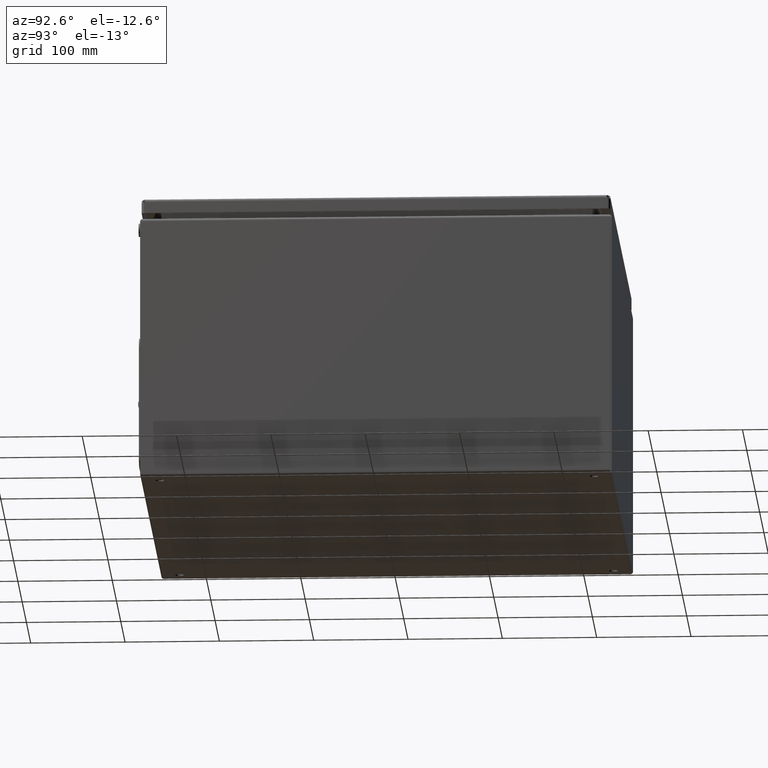
[diagram: clean part render]
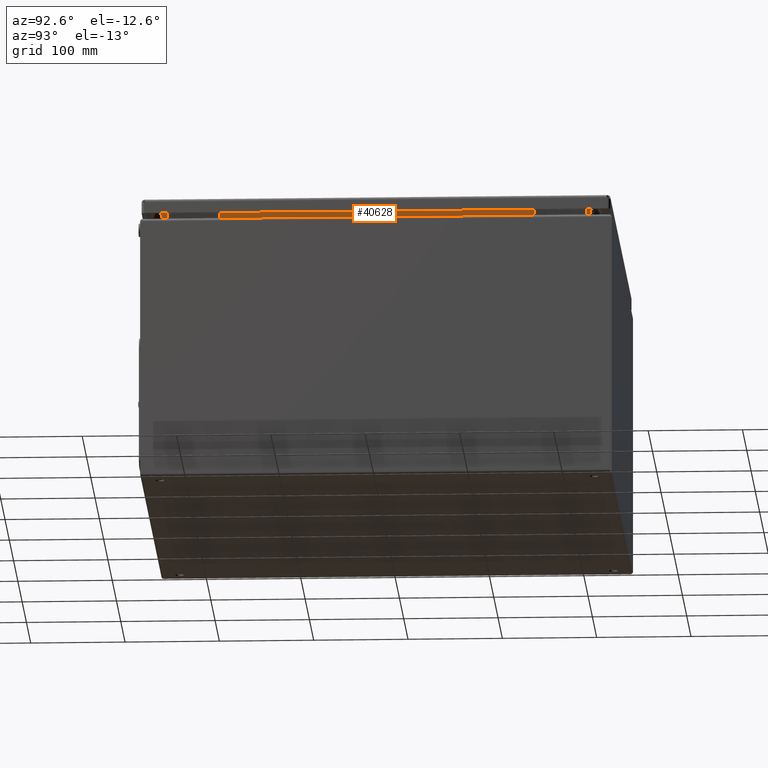
[diagram: same view with one face highlighted and labeled with its STEP entity id]
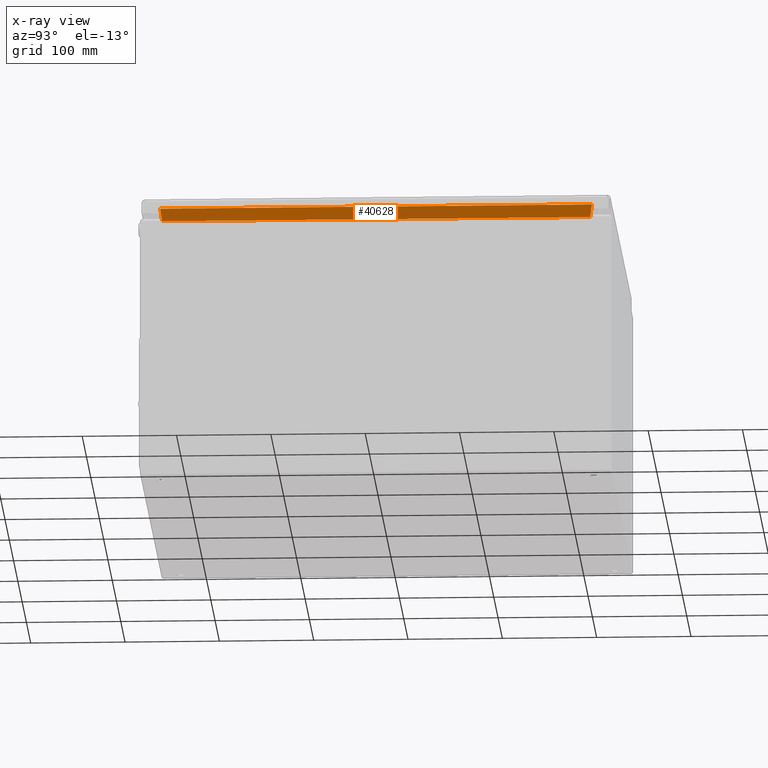
[diagram: x-ray of the same camera — body ghosted, the highlighted face saturated]
A machine part, auxiliary view. The second image highlights one B-rep face of the part: STEP entity #40628.
The next image is the same camera in x-ray: the body ghosted, the highlighted face saturated — about 0% of this face is hidden behind the body in this view.
In plain terms, the highlighted planar face has unit normal (-0.9903, 0, 0.1392).
Its self-contained STEP definition (entity closure, byte-faithful):
#22263 = DIRECTION ( 'NONE',  ( 0.0000000000000000000, 1.000000000000000000, 0.0000000000000000000 ) ) ;
#22264 = VECTOR ( 'NONE', #22263, 1000.000000000000000 ) ;
#22265 = CARTESIAN_POINT ( 'NONE',  ( 227.5157031185518400, -248.4992928931970100, 281.7087596514596700 ) ) ;
#22270 = CARTESIAN_POINT ( 'NONE',  ( 227.5157031185502500, 226.2096941927741500, 281.7087596514600100 ) ) ;
#22272 = LINE ( 'NONE', #22265, #22264 ) ;
#22284 = CARTESIAN_POINT ( 'NONE',  ( 227.5157031185518400, -227.7096941927494500, 281.7087596514596700 ) ) ;
#23637 = LINE ( 'NONE', #23679, #23678 ) ;
#23677 = DIRECTION ( 'NONE',  ( 0.0000000000000000000, 1.000000000000000000, 0.0000000000000000000 ) ) ;
#23678 = VECTOR ( 'NONE', #23677, 1000.000000000000000 ) ;
#23679 = CARTESIAN_POINT ( 'NONE',  ( 229.3810286342966000, -248.4992928931970100, 294.9812403485795500 ) ) ;
#23693 = CARTESIAN_POINT ( 'NONE',  ( 229.3810286342979900, -229.5933513302707400, 294.9812403485792100 ) ) ;
#23709 = DIRECTION ( 'NONE',  ( -0.1378186779084993300, -0.1391731009600767900, -0.9806308479691577800 ) ) ;
#23710 = VECTOR ( 'NONE', #23709, 1000.000000000000100 ) ;
#23711 = CARTESIAN_POINT ( 'NONE',  ( 227.3073494299898700, 225.9992928932298900, 280.2262461243303200 ) ) ;
#23712 = LINE ( 'NONE', #23711, #23710 ) ;
#23713 = CARTESIAN_POINT ( 'NONE',  ( 229.3810286342965400, 228.0933513302956600, 294.9812403485795500 ) ) ;
#23723 = DIRECTION ( 'NONE',  ( -0.1378186779085062200, 0.1391731009600591900, -0.9806308479691593400 ) ) ;
#23724 = VECTOR ( 'NONE', #23723, 1000.000000000000000 ) ;
#23725 = CARTESIAN_POINT ( 'NONE',  ( 227.4434632005015800, -227.6367443316658200, 281.1947459258175900 ) ) ;
#23726 = LINE ( 'NONE', #23725, #23724 ) ;
#23816 = DIRECTION ( 'NONE',  ( 0.1391731009600720400, 0.0000000000000000000, 0.9902680687415694700 ) ) ;
#23817 = DIRECTION ( 'NONE',  ( -0.9902680687415694700, 0.0000000000000000000, 0.1391731009600720400 ) ) ;
#23818 = CARTESIAN_POINT ( 'NONE',  ( 227.0354021031134600, -248.4992928931970100, 278.2912403485796100 ) ) ;
#23819 = AXIS2_PLACEMENT_3D ( 'NONE', #23818, #23817, #23816 ) ;
#23820 = PLANE ( 'NONE',  #23819 ) ;
#23821 = FACE_OUTER_BOUND ( 'NONE', #40512, .T. ) ;
#39193 = VERTEX_POINT ( 'NONE', #22284 ) ;
#39205 = VERTEX_POINT ( 'NONE', #22270 ) ;
#39210 = EDGE_CURVE ( 'NONE', #39193, #39205, #22272, .T. ) ;
#40485 = EDGE_CURVE ( 'NONE', #40540, #40519, #23637, .T. ) ;
#40504 = EDGE_CURVE ( 'NONE', #40540, #39193, #23726, .T. ) ;
#40512 = EDGE_LOOP ( 'NONE', ( #40631, #40633, #40635, #40636 ) ) ;
#40519 = VERTEX_POINT ( 'NONE', #23713 ) ;
#40524 = EDGE_CURVE ( 'NONE', #40519, #39205, #23712, .T. ) ;
#40540 = VERTEX_POINT ( 'NONE', #23693 ) ;
#40628 = ADVANCED_FACE ( 'NONE', ( #23821 ), #23820, .F. ) ;
#40631 = ORIENTED_EDGE ( 'NONE', *, *, #40485, .F. ) ;
#40633 = ORIENTED_EDGE ( 'NONE', *, *, #40504, .T. ) ;
#40635 = ORIENTED_EDGE ( 'NONE', *, *, #39210, .T. ) ;
#40636 = ORIENTED_EDGE ( 'NONE', *, *, #40524, .F. ) ;